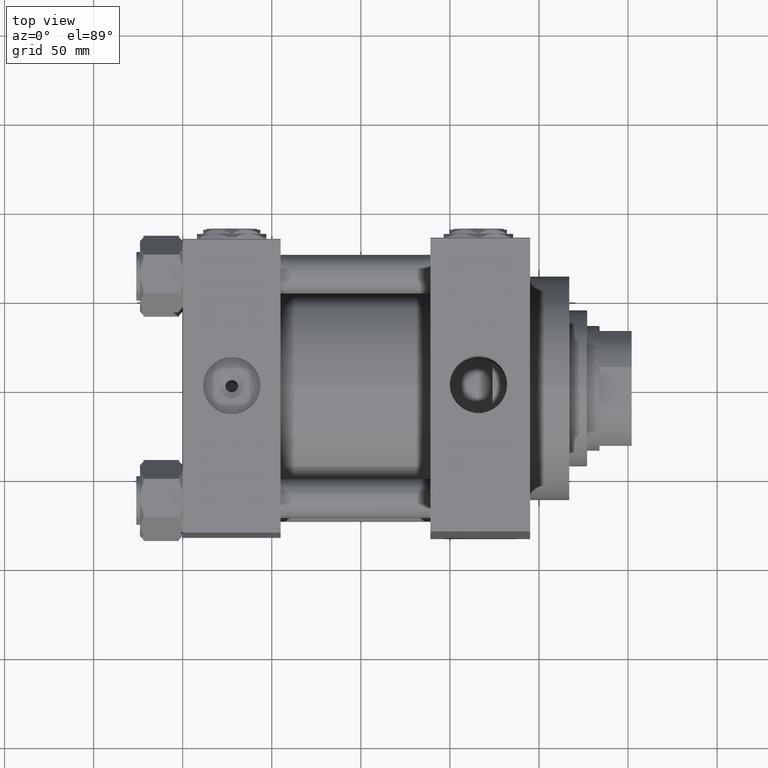
[diagram: clean part render]
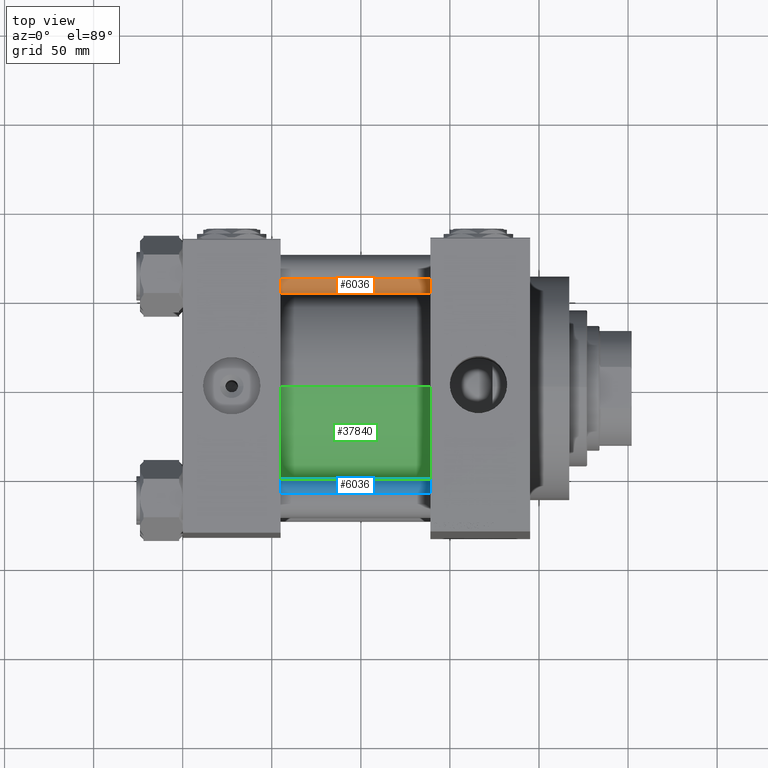
[diagram: same view with three faces highlighted in distinct colors, each labeled with its STEP entity id]
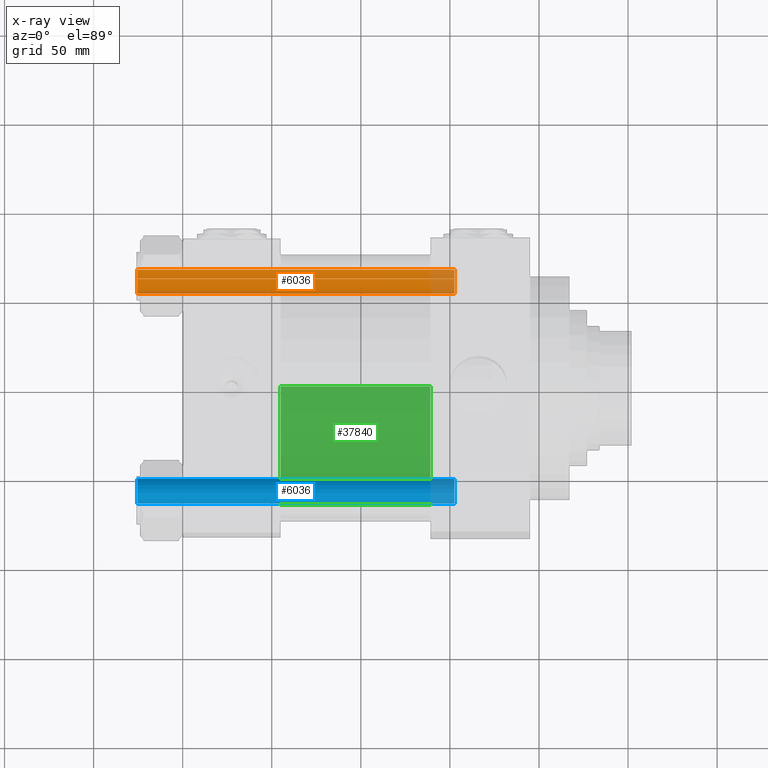
[diagram: x-ray of the same camera — body ghosted, the three highlighted faces saturated]
A machine part, top view with three faces highlighted in distinct colors.
The next image is the same camera in x-ray (body ghosted, the three faces saturated) — at least one of them is partly hidden behind the body in this view.
Their STEP definitions:

[orange] entity #6036 — the highlighted cylindrical surface (edge-blend (fillet) strip) has radius 11 mm, axis along (-1, -0, 0).
#663 = VERTEX_POINT ( 'NONE', #19202 ) ;
#2710 = EDGE_LOOP ( 'NONE', ( #41803, #32111, #8953, #39634 ) ) ;
#4267 = FACE_OUTER_BOUND ( 'NONE', #2710, .T. ) ;
#6036 = ADVANCED_FACE ( 'NONE', ( #4267 ), #27763, .T. ) ;
#8278 = DIRECTION ( 'NONE',  ( 1.000000000000000000, 0.000000000000000000, 0.000000000000000000 ) ) ;
#8953 = ORIENTED_EDGE ( 'NONE', *, *, #23263, .T. ) ;
#10262 = AXIS2_PLACEMENT_3D ( 'NONE', #23490, #47208, #19952 ) ;
#11161 = CIRCLE ( 'NONE', #34561, 11.00000000000000000 ) ;
#12566 = DIRECTION ( 'NONE',  ( 0.000000000000000000, 0.000000000000000000, -1.000000000000000000 ) ) ;
#13729 = LINE ( 'NONE', #40725, #44516 ) ;
#13961 = EDGE_CURVE ( 'NONE', #47904, #663, #13729, .T. ) ;
#14601 = CARTESIAN_POINT ( 'NONE',  ( -11.00000000000000000, 0.000000000000000000, 178.5000000000000853 ) ) ;
#15712 = VERTEX_POINT ( 'NONE', #28596 ) ;
#18150 = CARTESIAN_POINT ( 'NONE',  ( 0.000000000000000000, 0.000000000000000000, 0.5000000000001392220 ) ) ;
#18422 = DIRECTION ( 'NONE',  ( 1.000000000000000000, 0.000000000000000000, 0.000000000000000000 ) ) ;
#19202 = CARTESIAN_POINT ( 'NONE',  ( 11.00000000000000000, 1.347111479062088207E-15, 0.5000000000001392220 ) ) ;
#19952 = DIRECTION ( 'NONE',  ( -1.000000000000000000, 0.000000000000000000, 0.000000000000000000 ) ) ;
#23263 = EDGE_CURVE ( 'NONE', #49933, #15712, #34509, .T. ) ;
#23490 = CARTESIAN_POINT ( 'NONE',  ( 0.000000000000000000, 0.000000000000000000, 179.0000000000000000 ) ) ;
#27763 = CYLINDRICAL_SURFACE ( 'NONE', #10262, 11.00000000000000000 ) ;
#28596 = CARTESIAN_POINT ( 'NONE',  ( -11.00000000000000000, 0.000000000000000000, 0.5000000000001392220 ) ) ;
#29740 = AXIS2_PLACEMENT_3D ( 'NONE', #38834, #12566, #8278 ) ;
#32111 = ORIENTED_EDGE ( 'NONE', *, *, #48052, .T. ) ;
#33819 = EDGE_CURVE ( 'NONE', #15712, #663, #11161, .T. ) ;
#34509 = LINE ( 'NONE', #43492, #38253 ) ;
#34561 = AXIS2_PLACEMENT_3D ( 'NONE', #18150, #37592, #18422 ) ;
#36199 = CIRCLE ( 'NONE', #29740, 11.00000000000000000 ) ;
#36455 = DIRECTION ( 'NONE',  ( -0.000000000000000000, -0.000000000000000000, -1.000000000000000000 ) ) ;
#37592 = DIRECTION ( 'NONE',  ( -0.000000000000000000, -0.000000000000000000, 1.000000000000000000 ) ) ;
#38253 = VECTOR ( 'NONE', #47790, 1000.000000000000000 ) ;
#38337 = CARTESIAN_POINT ( 'NONE',  ( 11.00000000000000000, 1.347111479062088207E-15, 178.5000000000000853 ) ) ;
#38834 = CARTESIAN_POINT ( 'NONE',  ( 0.000000000000000000, 0.000000000000000000, 178.5000000000000853 ) ) ;
#39634 = ORIENTED_EDGE ( 'NONE', *, *, #33819, .T. ) ;
#40725 = CARTESIAN_POINT ( 'NONE',  ( 11.00000000000000000, 1.347111479062088207E-15, 179.0000000000000000 ) ) ;
#41803 = ORIENTED_EDGE ( 'NONE', *, *, #13961, .F. ) ;
#43492 = CARTESIAN_POINT ( 'NONE',  ( -11.00000000000000000, 0.000000000000000000, 179.0000000000000000 ) ) ;
#44516 = VECTOR ( 'NONE', #36455, 1000.000000000000000 ) ;
#47208 = DIRECTION ( 'NONE',  ( -0.000000000000000000, -0.000000000000000000, -1.000000000000000000 ) ) ;
#47790 = DIRECTION ( 'NONE',  ( -0.000000000000000000, -0.000000000000000000, -1.000000000000000000 ) ) ;
#47904 = VERTEX_POINT ( 'NONE', #38337 ) ;
#48052 = EDGE_CURVE ( 'NONE', #47904, #49933, #36199, .T. ) ;
#49933 = VERTEX_POINT ( 'NONE', #14601 ) ;

[blue] entity #6036 — the highlighted cylindrical surface (edge-blend (fillet) strip) has radius 11 mm, axis along (1, 0, 0).
#663 = VERTEX_POINT ( 'NONE', #19202 ) ;
#2710 = EDGE_LOOP ( 'NONE', ( #41803, #32111, #8953, #39634 ) ) ;
#4267 = FACE_OUTER_BOUND ( 'NONE', #2710, .T. ) ;
#6036 = ADVANCED_FACE ( 'NONE', ( #4267 ), #27763, .T. ) ;
#8278 = DIRECTION ( 'NONE',  ( 1.000000000000000000, 0.000000000000000000, 0.000000000000000000 ) ) ;
#8953 = ORIENTED_EDGE ( 'NONE', *, *, #23263, .T. ) ;
#10262 = AXIS2_PLACEMENT_3D ( 'NONE', #23490, #47208, #19952 ) ;
#11161 = CIRCLE ( 'NONE', #34561, 11.00000000000000000 ) ;
#12566 = DIRECTION ( 'NONE',  ( 0.000000000000000000, 0.000000000000000000, -1.000000000000000000 ) ) ;
#13729 = LINE ( 'NONE', #40725, #44516 ) ;
#13961 = EDGE_CURVE ( 'NONE', #47904, #663, #13729, .T. ) ;
#14601 = CARTESIAN_POINT ( 'NONE',  ( -11.00000000000000000, 0.000000000000000000, 178.5000000000000853 ) ) ;
#15712 = VERTEX_POINT ( 'NONE', #28596 ) ;
#18150 = CARTESIAN_POINT ( 'NONE',  ( 0.000000000000000000, 0.000000000000000000, 0.5000000000001392220 ) ) ;
#18422 = DIRECTION ( 'NONE',  ( 1.000000000000000000, 0.000000000000000000, 0.000000000000000000 ) ) ;
#19202 = CARTESIAN_POINT ( 'NONE',  ( 11.00000000000000000, 1.347111479062088207E-15, 0.5000000000001392220 ) ) ;
#19952 = DIRECTION ( 'NONE',  ( -1.000000000000000000, 0.000000000000000000, 0.000000000000000000 ) ) ;
#23263 = EDGE_CURVE ( 'NONE', #49933, #15712, #34509, .T. ) ;
#23490 = CARTESIAN_POINT ( 'NONE',  ( 0.000000000000000000, 0.000000000000000000, 179.0000000000000000 ) ) ;
#27763 = CYLINDRICAL_SURFACE ( 'NONE', #10262, 11.00000000000000000 ) ;
#28596 = CARTESIAN_POINT ( 'NONE',  ( -11.00000000000000000, 0.000000000000000000, 0.5000000000001392220 ) ) ;
#29740 = AXIS2_PLACEMENT_3D ( 'NONE', #38834, #12566, #8278 ) ;
#32111 = ORIENTED_EDGE ( 'NONE', *, *, #48052, .T. ) ;
#33819 = EDGE_CURVE ( 'NONE', #15712, #663, #11161, .T. ) ;
#34509 = LINE ( 'NONE', #43492, #38253 ) ;
#34561 = AXIS2_PLACEMENT_3D ( 'NONE', #18150, #37592, #18422 ) ;
#36199 = CIRCLE ( 'NONE', #29740, 11.00000000000000000 ) ;
#36455 = DIRECTION ( 'NONE',  ( -0.000000000000000000, -0.000000000000000000, -1.000000000000000000 ) ) ;
#37592 = DIRECTION ( 'NONE',  ( -0.000000000000000000, -0.000000000000000000, 1.000000000000000000 ) ) ;
#38253 = VECTOR ( 'NONE', #47790, 1000.000000000000000 ) ;
#38337 = CARTESIAN_POINT ( 'NONE',  ( 11.00000000000000000, 1.347111479062088207E-15, 178.5000000000000853 ) ) ;
#38834 = CARTESIAN_POINT ( 'NONE',  ( 0.000000000000000000, 0.000000000000000000, 178.5000000000000853 ) ) ;
#39634 = ORIENTED_EDGE ( 'NONE', *, *, #33819, .T. ) ;
#40725 = CARTESIAN_POINT ( 'NONE',  ( 11.00000000000000000, 1.347111479062088207E-15, 179.0000000000000000 ) ) ;
#41803 = ORIENTED_EDGE ( 'NONE', *, *, #13961, .F. ) ;
#43492 = CARTESIAN_POINT ( 'NONE',  ( -11.00000000000000000, 0.000000000000000000, 179.0000000000000000 ) ) ;
#44516 = VECTOR ( 'NONE', #36455, 1000.000000000000000 ) ;
#47208 = DIRECTION ( 'NONE',  ( -0.000000000000000000, -0.000000000000000000, -1.000000000000000000 ) ) ;
#47790 = DIRECTION ( 'NONE',  ( -0.000000000000000000, -0.000000000000000000, -1.000000000000000000 ) ) ;
#47904 = VERTEX_POINT ( 'NONE', #38337 ) ;
#48052 = EDGE_CURVE ( 'NONE', #47904, #49933, #36199, .T. ) ;
#49933 = VERTEX_POINT ( 'NONE', #14601 ) ;

[green] entity #37840 — the highlighted cylindrical surface (partial cylindrical patch) has radius 65.5 mm, axis along (-1, -0, -0).
#1040 = CARTESIAN_POINT ( 'NONE',  ( 139.0000000000000000, -2.602085213965210642E-15, 65.50000000000001421 ) ) ;
#3279 = EDGE_LOOP ( 'NONE', ( #41571, #33426, #17259, #25643 ) ) ;
#3866 = VECTOR ( 'NONE', #25929, 1000.000000000000000 ) ;
#4694 = DIRECTION ( 'NONE',  ( 0.000000000000000000, 0.000000000000000000, -1.000000000000000000 ) ) ;
#4792 = CIRCLE ( 'NONE', #37058, 65.50000000000001421 ) ;
#5676 = CARTESIAN_POINT ( 'NONE',  ( 54.99999999999999289, 5.419351320449953395E-15, -65.50000000000001421 ) ) ;
#8006 = CARTESIAN_POINT ( 'NONE',  ( 54.99999999999999289, -2.602085213965210642E-15, 65.50000000000001421 ) ) ;
#10754 = CARTESIAN_POINT ( 'NONE',  ( 139.0000000000000000, 5.419351320449953395E-15, -65.50000000000001421 ) ) ;
#11473 = FACE_OUTER_BOUND ( 'NONE', #3279, .T. ) ;
#12912 = DIRECTION ( 'NONE',  ( 0.000000000000000000, 0.000000000000000000, 1.000000000000000000 ) ) ;
#13440 = DIRECTION ( 'NONE',  ( -1.000000000000000000, -0.000000000000000000, -0.000000000000000000 ) ) ;
#13522 = VECTOR ( 'NONE', #13440, 1000.000000000000000 ) ;
#14112 = CARTESIAN_POINT ( 'NONE',  ( 139.0000000000000000, -2.602085213965210642E-15, 65.50000000000001421 ) ) ;
#17158 = AXIS2_PLACEMENT_3D ( 'NONE', #44393, #39589, #47429 ) ;
#17259 = ORIENTED_EDGE ( 'NONE', *, *, #41676, .T. ) ;
#17852 = CARTESIAN_POINT ( 'NONE',  ( 139.0000000000000000, 5.419351320449953395E-15, -65.50000000000001421 ) ) ;
#18550 = EDGE_CURVE ( 'NONE', #28826, #49399, #38903, .T. ) ;
#21025 = LINE ( 'NONE', #1040, #13522 ) ;
#24863 = VERTEX_POINT ( 'NONE', #10754 ) ;
#25643 = ORIENTED_EDGE ( 'NONE', *, *, #18550, .T. ) ;
#25929 = DIRECTION ( 'NONE',  ( -1.000000000000000000, -0.000000000000000000, -0.000000000000000000 ) ) ;
#26942 = DIRECTION ( 'NONE',  ( 1.000000000000000000, 0.000000000000000000, 0.000000000000000000 ) ) ;
#27807 = DIRECTION ( 'NONE',  ( -1.000000000000000000, -0.000000000000000000, -0.000000000000000000 ) ) ;
#28826 = VERTEX_POINT ( 'NONE', #8006 ) ;
#30681 = CYLINDRICAL_SURFACE ( 'NONE', #50019, 65.50000000000001421 ) ;
#30920 = CARTESIAN_POINT ( 'NONE',  ( 139.0000000000000000, -2.602085213965210642E-15, 0.000000000000000000 ) ) ;
#33426 = ORIENTED_EDGE ( 'NONE', *, *, #37537, .F. ) ;
#37058 = AXIS2_PLACEMENT_3D ( 'NONE', #39294, #26942, #4694 ) ;
#37537 = EDGE_CURVE ( 'NONE', #49790, #24863, #4792, .T. ) ;
#37840 = ADVANCED_FACE ( 'NONE', ( #11473 ), #30681, .T. ) ;
#38903 = CIRCLE ( 'NONE', #17158, 65.50000000000001421 ) ;
#39294 = CARTESIAN_POINT ( 'NONE',  ( 139.0000000000000000, -2.602085213965210642E-15, 0.000000000000000000 ) ) ;
#39589 = DIRECTION ( 'NONE',  ( 1.000000000000000000, -0.000000000000000000, -0.000000000000000000 ) ) ;
#41571 = ORIENTED_EDGE ( 'NONE', *, *, #47286, .F. ) ;
#41676 = EDGE_CURVE ( 'NONE', #49790, #28826, #21025, .T. ) ;
#44393 = CARTESIAN_POINT ( 'NONE',  ( 54.99999999999999289, -2.602085213965210642E-15, 0.000000000000000000 ) ) ;
#47286 = EDGE_CURVE ( 'NONE', #24863, #49399, #49657, .T. ) ;
#47429 = DIRECTION ( 'NONE',  ( 0.000000000000000000, 0.000000000000000000, 1.000000000000000000 ) ) ;
#49399 = VERTEX_POINT ( 'NONE', #5676 ) ;
#49657 = LINE ( 'NONE', #17852, #3866 ) ;
#49790 = VERTEX_POINT ( 'NONE', #14112 ) ;
#50019 = AXIS2_PLACEMENT_3D ( 'NONE', #30920, #27807, #12912 ) ;